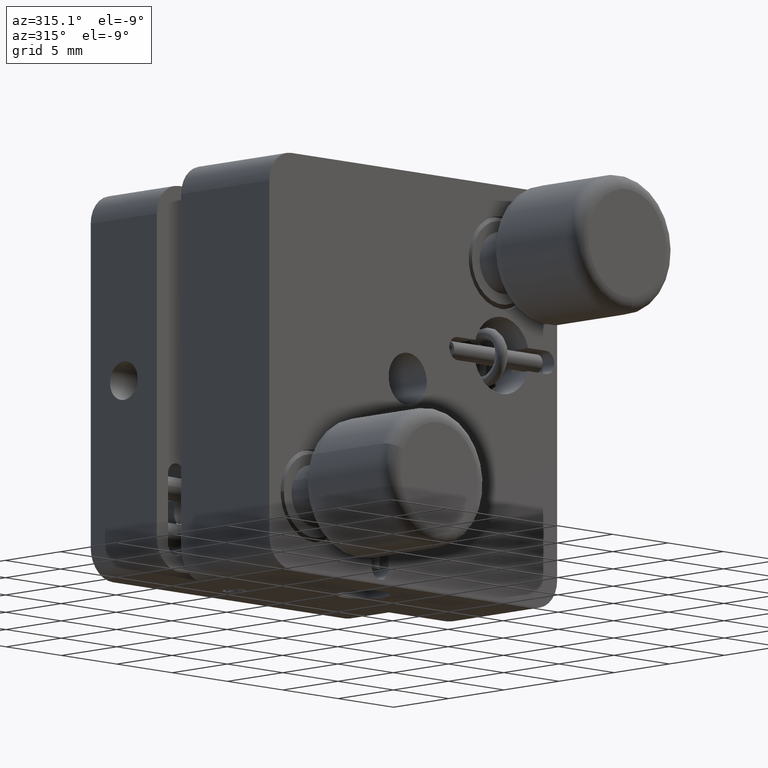
[diagram: clean part render]
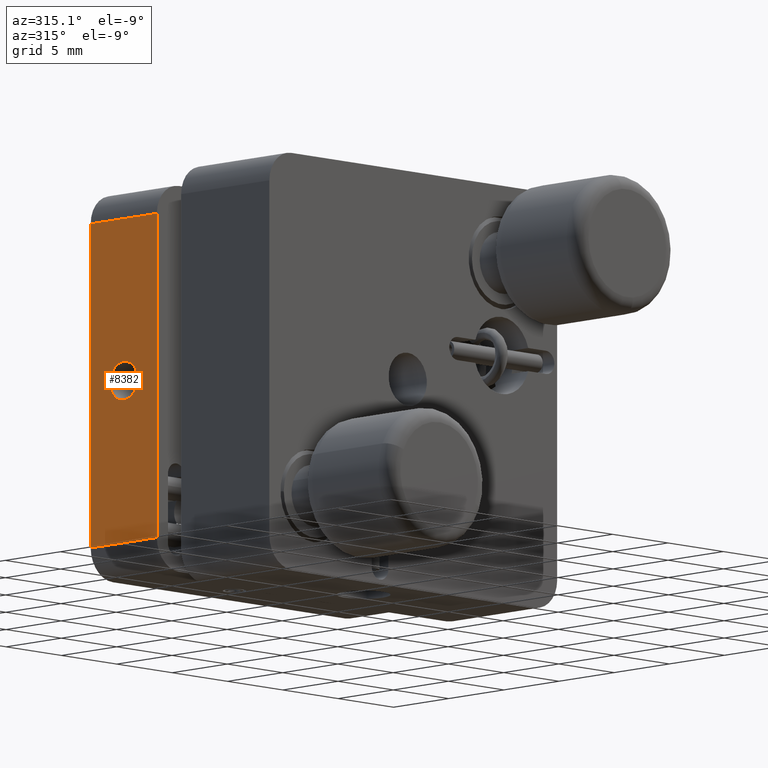
[diagram: same view with one face highlighted and labeled with its STEP entity id]
A machine part, auxiliary view. The second image highlights one B-rep face of the part: STEP entity #8382.
In plain terms, the highlighted planar face has unit normal (-1, 0, 0).
Its self-contained STEP definition (entity closure, byte-faithful):
#90 = CIRCLE ( 'NONE', #1141, 1.249999999999987100 ) ;
#105 = CIRCLE ( 'NONE', #9029, 1.249999999999987100 ) ;
#142 = DIRECTION ( 'NONE',  ( 0.0000000000000000000, 0.0000000000000000000, 1.000000000000000000 ) ) ;
#464 = ORIENTED_EDGE ( 'NONE', *, *, #9393, .F. ) ;
#1016 = CARTESIAN_POINT ( 'NONE',  ( -13.22584452143498600, -1.911233217847382500, 35.50000000000001400 ) ) ;
#1072 = ORIENTED_EDGE ( 'NONE', *, *, #7489, .F. ) ;
#1141 = AXIS2_PLACEMENT_3D ( 'NONE', #6529, #1425, #7367 ) ;
#1153 = LINE ( 'NONE', #3599, #9903 ) ;
#1219 = DIRECTION ( 'NONE',  ( -1.000000000000000000, -0.0000000000000000000, -0.0000000000000000000 ) ) ;
#1300 = EDGE_CURVE ( 'NONE', #4482, #6372, #105, .T. ) ;
#1327 = VECTOR ( 'NONE', #1537, 1000.000000000000000 ) ;
#1369 = PLANE ( 'NONE',  #8113 ) ;
#1425 = DIRECTION ( 'NONE',  ( -1.000000000000000000, -0.0000000000000000000, -0.0000000000000000000 ) ) ;
#1537 = DIRECTION ( 'NONE',  ( 0.0000000000000000000, 1.000000000000000000, 0.0000000000000000000 ) ) ;
#1900 = CARTESIAN_POINT ( 'NONE',  ( -13.22584452143498600, 4.088766782152617900, 14.50000000000001200 ) ) ;
#2162 = VERTEX_POINT ( 'NONE', #9788 ) ;
#2173 = EDGE_CURVE ( 'NONE', #8573, #2162, #1153, .T. ) ;
#2238 = EDGE_CURVE ( 'NONE', #6372, #4482, #90, .T. ) ;
#2457 = ORIENTED_EDGE ( 'NONE', *, *, #1300, .F. ) ;
#2726 = LINE ( 'NONE', #1900, #7258 ) ;
#2951 = ORIENTED_EDGE ( 'NONE', *, *, #9079, .T. ) ;
#3157 = VERTEX_POINT ( 'NONE', #9911 ) ;
#3599 = CARTESIAN_POINT ( 'NONE',  ( -13.22584452143498600, -1.911233217847382500, 35.50000000000001400 ) ) ;
#3665 = CARTESIAN_POINT ( 'NONE',  ( -13.22584452143498800, 1.088766782152617700, 23.75000000000002800 ) ) ;
#4307 = ORIENTED_EDGE ( 'NONE', *, *, #2173, .T. ) ;
#4343 = CARTESIAN_POINT ( 'NONE',  ( -13.22584452143498800, 1.088766782152617500, 26.25000000000000400 ) ) ;
#4482 = VERTEX_POINT ( 'NONE', #4343 ) ;
#4776 = CARTESIAN_POINT ( 'NONE',  ( -13.22584452143498600, -1.911233217847382500, 14.50000000000001200 ) ) ;
#4917 = EDGE_LOOP ( 'NONE', ( #2457, #5265 ) ) ;
#5265 = ORIENTED_EDGE ( 'NONE', *, *, #2238, .F. ) ;
#5632 = DIRECTION ( 'NONE',  ( 0.0000000000000000000, 0.0000000000000000000, 1.000000000000000000 ) ) ;
#5847 = CARTESIAN_POINT ( 'NONE',  ( -13.22584452143499000, -1.911233217847382500, 14.50000000000001200 ) ) ;
#6333 = CARTESIAN_POINT ( 'NONE',  ( -13.22584452143498800, 1.088766782152617500, 25.00000000000001400 ) ) ;
#6372 = VERTEX_POINT ( 'NONE', #3665 ) ;
#6529 = CARTESIAN_POINT ( 'NONE',  ( -13.22584452143498800, 1.088766782152617500, 25.00000000000001400 ) ) ;
#6542 = VECTOR ( 'NONE', #7624, 1000.000000000000000 ) ;
#6675 = FACE_BOUND ( 'NONE', #4917, .T. ) ;
#6733 = EDGE_LOOP ( 'NONE', ( #1072, #464, #2951, #4307 ) ) ;
#6786 = CARTESIAN_POINT ( 'NONE',  ( -13.22584452143498600, -1.911233217847382500, 14.50000000000001200 ) ) ;
#6809 = LINE ( 'NONE', #6786, #6542 ) ;
#7170 = DIRECTION ( 'NONE',  ( 0.0000000000000000000, 0.0000000000000000000, 1.000000000000000000 ) ) ;
#7258 = VECTOR ( 'NONE', #142, 1000.000000000000000 ) ;
#7367 = DIRECTION ( 'NONE',  ( 0.0000000000000000000, 0.0000000000000000000, 1.000000000000000000 ) ) ;
#7489 = EDGE_CURVE ( 'NONE', #3157, #2162, #2726, .T. ) ;
#7624 = DIRECTION ( 'NONE',  ( 0.0000000000000000000, 0.0000000000000000000, 1.000000000000000000 ) ) ;
#8113 = AXIS2_PLACEMENT_3D ( 'NONE', #4776, #10710, #5632 ) ;
#8382 = ADVANCED_FACE ( 'NONE', ( #6675, #10896 ), #1369, .T. ) ;
#8573 = VERTEX_POINT ( 'NONE', #1016 ) ;
#9029 = AXIS2_PLACEMENT_3D ( 'NONE', #6333, #1219, #7170 ) ;
#9079 = EDGE_CURVE ( 'NONE', #9862, #8573, #6809, .T. ) ;
#9281 = LINE ( 'NONE', #5847, #1327 ) ;
#9393 = EDGE_CURVE ( 'NONE', #9862, #3157, #9281, .T. ) ;
#9535 = DIRECTION ( 'NONE',  ( 0.0000000000000000000, 1.000000000000000000, 0.0000000000000000000 ) ) ;
#9555 = CARTESIAN_POINT ( 'NONE',  ( -13.22584452143499000, -1.911233217847382500, 14.50000000000001200 ) ) ;
#9788 = CARTESIAN_POINT ( 'NONE',  ( -13.22584452143498600, 4.088766782152617900, 35.50000000000001400 ) ) ;
#9862 = VERTEX_POINT ( 'NONE', #9555 ) ;
#9903 = VECTOR ( 'NONE', #9535, 1000.000000000000000 ) ;
#9911 = CARTESIAN_POINT ( 'NONE',  ( -13.22584452143499000, 4.088766782152617900, 14.50000000000001200 ) ) ;
#10710 = DIRECTION ( 'NONE',  ( -1.000000000000000000, 0.0000000000000000000, 0.0000000000000000000 ) ) ;
#10896 = FACE_OUTER_BOUND ( 'NONE', #6733, .T. ) ;